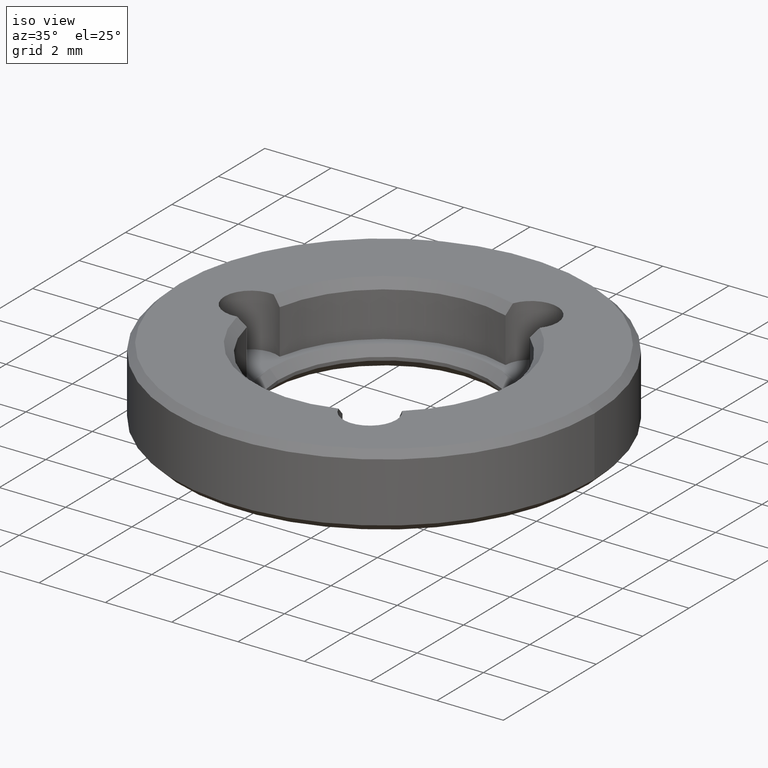
[diagram: clean part render]
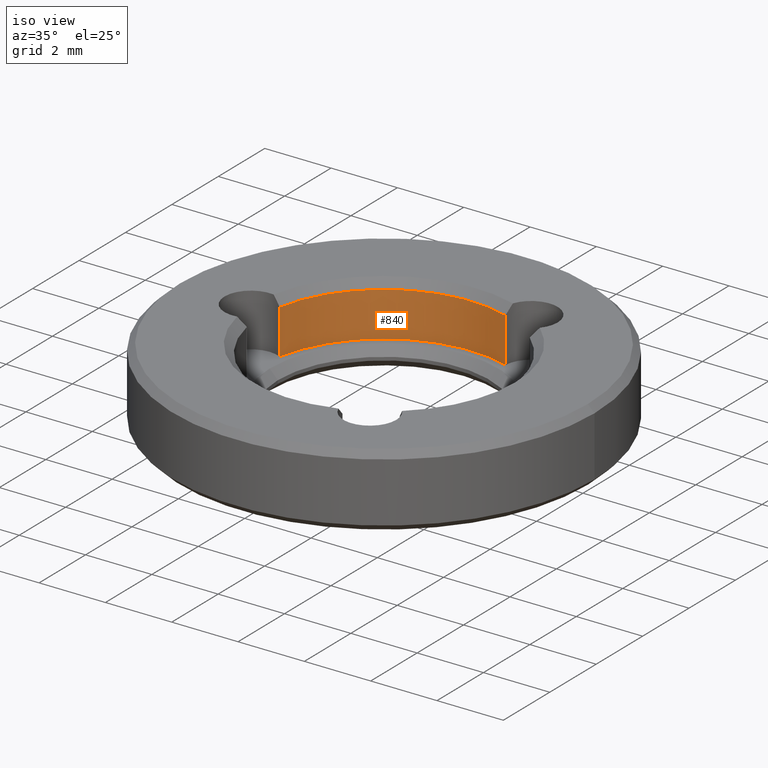
[diagram: same view with one face highlighted and labeled with its STEP entity id]
A machine part, iso view. The second image highlights one B-rep face of the part: STEP entity #840.
In plain terms, the highlighted cylindrical surface (partial cylindrical patch) has radius 3.71 mm, axis along (-0, -0, 1).
Its self-contained STEP definition (entity closure, byte-faithful):
#9 = CARTESIAN_POINT ( 'NONE',  ( -3.641421446384038862, 0.7100351046352334494, 1.400000000000000133 ) ) ;
#13 = DIRECTION ( 'NONE',  ( -0.000000000000000000, 0.000000000000000000, 1.000000000000000000 ) ) ;
#22 = AXIS2_PLACEMENT_3D ( 'NONE', #770, #502, #784 ) ;
#27 = DIRECTION ( 'NONE',  ( 1.000000000000000000, 0.000000000000000000, 0.000000000000000000 ) ) ;
#29 = CYLINDRICAL_SURFACE ( 'NONE', #22, 3.709999999999999964 ) ;
#56 = VERTEX_POINT ( 'NONE', #550 ) ;
#101 = CARTESIAN_POINT ( 'NONE',  ( -3.641421446384038862, 0.7100351046352334494, 0.6000000000000003109 ) ) ;
#110 = CARTESIAN_POINT ( 'NONE',  ( 0.000000000000000000, 0.000000000000000000, 0.6000000000000000888 ) ) ;
#122 = AXIS2_PLACEMENT_3D ( 'NONE', #110, #375, #27 ) ;
#132 = LINE ( 'NONE', #9, #760 ) ;
#159 = EDGE_CURVE ( 'NONE', #332, #190, #132, .T. ) ;
#165 = VERTEX_POINT ( 'NONE', #583 ) ;
#188 = VECTOR ( 'NONE', #13, 1000.000000000000000 ) ;
#190 = VERTEX_POINT ( 'NONE', #101 ) ;
#194 = EDGE_CURVE ( 'NONE', #56, #190, #723, .T. ) ;
#237 = ORIENTED_EDGE ( 'NONE', *, *, #610, .T. ) ;
#290 = ORIENTED_EDGE ( 'NONE', *, *, #905, .T. ) ;
#320 = CARTESIAN_POINT ( 'NONE',  ( -3.641421446384039751, 0.7100351046352340045, 1.949999999999998179 ) ) ;
#332 = VERTEX_POINT ( 'NONE', #320 ) ;
#352 = DIRECTION ( 'NONE',  ( 0.000000000000000000, 0.000000000000000000, 1.000000000000000000 ) ) ;
#375 = DIRECTION ( 'NONE',  ( 0.000000000000000000, 0.000000000000000000, 1.000000000000000000 ) ) ;
#470 = EDGE_LOOP ( 'NONE', ( #475, #237, #290, #660 ) ) ;
#475 = ORIENTED_EDGE ( 'NONE', *, *, #194, .F. ) ;
#498 = AXIS2_PLACEMENT_3D ( 'NONE', #865, #352, #562 ) ;
#502 = DIRECTION ( 'NONE',  ( -0.000000000000000000, -0.000000000000000000, 1.000000000000000000 ) ) ;
#550 = CARTESIAN_POINT ( 'NONE',  ( 1.205802284999131668, 3.508581030771680265, 0.5999999999999998668 ) ) ;
#562 = DIRECTION ( 'NONE',  ( 1.000000000000000000, 0.000000000000000000, 0.000000000000000000 ) ) ;
#576 = CARTESIAN_POINT ( 'NONE',  ( 1.205802284999131668, 3.508581030771680265, 1.399999999999998801 ) ) ;
#583 = CARTESIAN_POINT ( 'NONE',  ( 1.205802284999131890, 3.508581030771681153, 1.949999999999997957 ) ) ;
#610 = EDGE_CURVE ( 'NONE', #56, #165, #791, .T. ) ;
#615 = CIRCLE ( 'NONE', #498, 3.709999999999999964 ) ;
#660 = ORIENTED_EDGE ( 'NONE', *, *, #159, .T. ) ;
#715 = FACE_OUTER_BOUND ( 'NONE', #470, .T. ) ;
#723 = CIRCLE ( 'NONE', #122, 3.709999999999999964 ) ;
#760 = VECTOR ( 'NONE', #847, 1000.000000000000000 ) ;
#770 = CARTESIAN_POINT ( 'NONE',  ( 0.000000000000000000, 0.000000000000000000, 0.6000000000000000888 ) ) ;
#784 = DIRECTION ( 'NONE',  ( 1.000000000000000000, 0.000000000000000000, 0.000000000000000000 ) ) ;
#791 = LINE ( 'NONE', #576, #188 ) ;
#840 = ADVANCED_FACE ( 'NONE', ( #715 ), #29, .F. ) ;
#847 = DIRECTION ( 'NONE',  ( 0.000000000000000000, 0.000000000000000000, -1.000000000000000000 ) ) ;
#865 = CARTESIAN_POINT ( 'NONE',  ( 0.000000000000000000, 0.000000000000000000, 1.949999999999998179 ) ) ;
#905 = EDGE_CURVE ( 'NONE', #165, #332, #615, .T. ) ;